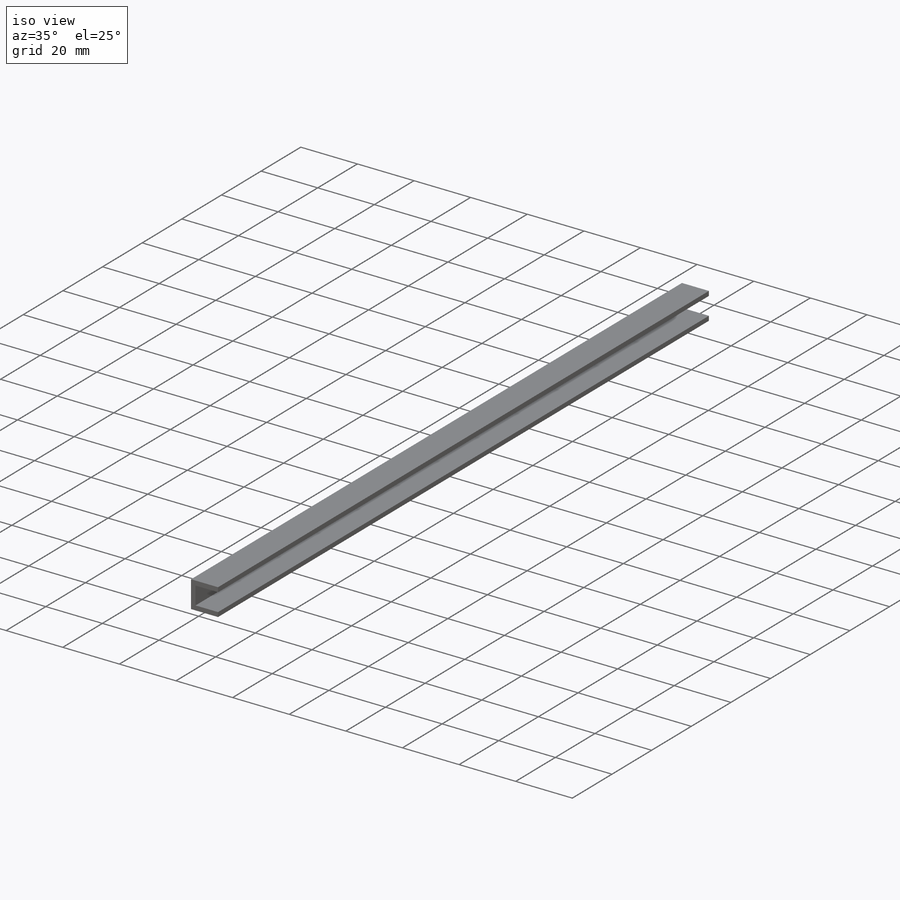
[diagram: iso view]
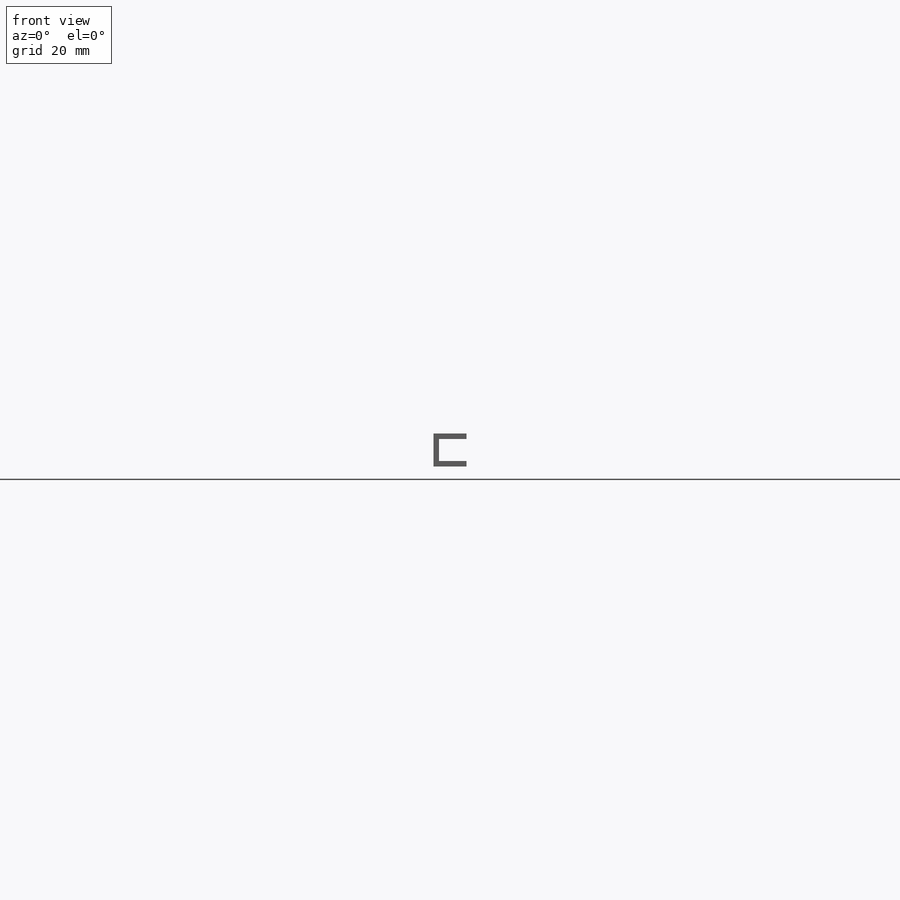
[diagram: front view]
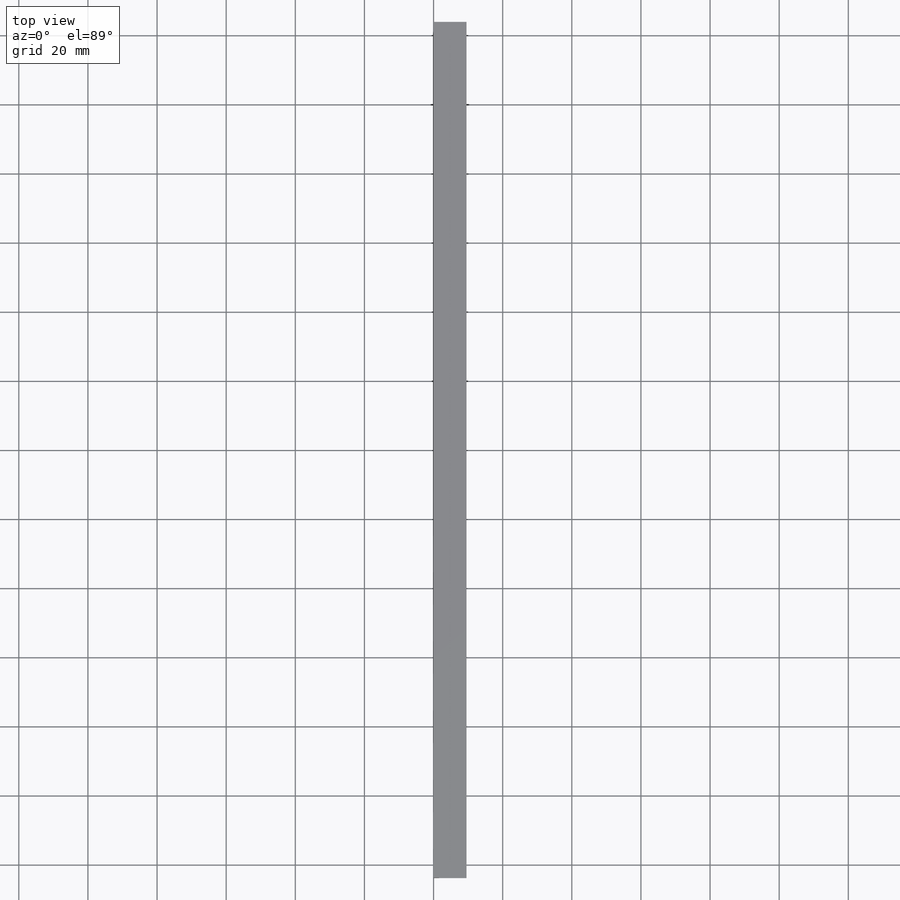
[diagram: top view]
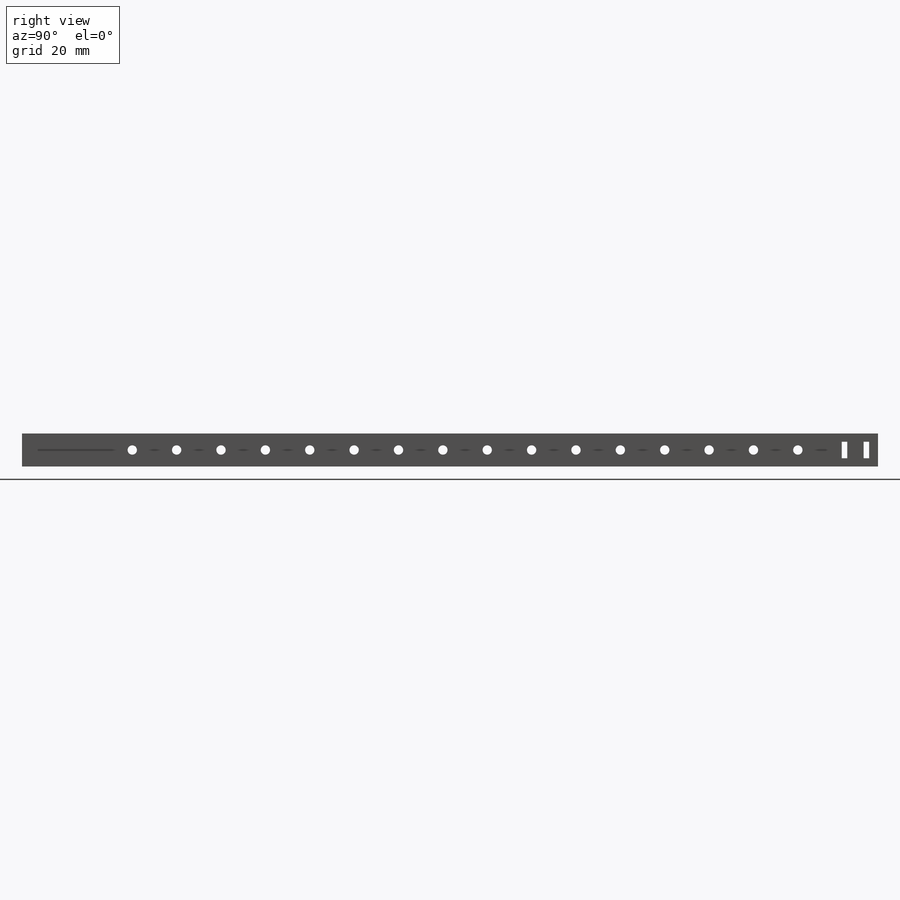
[diagram: right view]
SOLIDWORKS PART (.sldprt)
format: sldprt  version: not decoded by parser v0  size: 365,056 bytes
history: native  units: mm
features: thread x16, sketch x7, hole x2, cut_extrude x2, material x1, extrude x1 (+11 scaffold rows collapsed)
feature tree (40):
  scaffold x11  (default folders/planes/origin — collapsed)
  material  "6063-T6"
  sketch  "Sketch1"  dims[D1=9.525mm D2=9.525mm D3=1.5875mm D4=1.5875mm]
  extrude  "Boss-Extrude1"  Depth=247.65mm
  hole  "CSK for #6 Flat Head Machine Screw (100)1"  Diameter=3.7973mm Depth=1.5875mm
  sketch  "Sketch9"  dims[D1=152.4mm]
  sketch  "Sketch8"  dims[hole-wizard template sketch: 55 standard entries collapsed; hole parameters kept: c17.Thru Hole Depth=1.5875mm c17.Near C'Sink Dia.=7.0866mm c17.D4=~3.666174mm c17.Near C'Sink Angle=100.0deg]
  sketch  "Sketch10"  dims[D1=2.54mm D2=76.2mm]
  cut_extrude  "Cut-Extrude1"  [1 undecoded]
  sketch  "Sketch11"  dims[D1=2.54mm D2=~2.38125mm D3=~2.38125mm D4=1.5875mm D5=~2.38125mm]
  cut_extrude  "Cut-Extrude2"  [1 undecoded]
  hole  "#6-32 Tapped Hole1"  Diameter=2.7051mm Depth=9.398mm
  sketch  "Sketch14"  dims[D2=12.7mm D1=17.0]
  sketch  "Sketch13"  dims[hole-wizard template sketch: 49 standard entries collapsed; hole parameters kept: c15.Drill Angle=180.0deg]
  thread  "Hole Thread2"  Diameter=1.5875mm  [1 undecoded]
  thread  "Hole Thread3"  Diameter=1.5875mm  [1 undecoded]
  thread  "Hole Thread4"  Diameter=1.5875mm  [1 undecoded]
  thread  "Hole Thread5"  Diameter=1.5875mm  [1 undecoded]
  thread  "Hole Thread6"  Diameter=1.5875mm  [1 undecoded]
  thread  "Hole Thread7"  Diameter=1.5875mm  [1 undecoded]
  thread  "Hole Thread8"  Diameter=1.5875mm  [1 undecoded]
  thread  "Hole Thread9"  Diameter=1.5875mm  [1 undecoded]
  thread  "Hole Thread10"  Diameter=1.5875mm  [1 undecoded]
  thread  "Hole Thread11"  Diameter=1.5875mm  [1 undecoded]
  thread  "Hole Thread12"  Diameter=1.5875mm  [1 undecoded]
  thread  "Hole Thread13"  Diameter=1.5875mm  [1 undecoded]
  thread  "Hole Thread14"  Diameter=1.5875mm  [1 undecoded]
  thread  "Hole Thread15"  Diameter=1.5875mm  [1 undecoded]
  thread  "Hole Thread16"  Diameter=1.5875mm  [1 undecoded]
  thread  "Hole Thread17"  Diameter=1.5875mm  [1 undecoded]
decode coverage: 26 of 28 modeling features carry decoded parameters
note: ~ marks probable driven/reference dimensions
note: 18 parameter values undecoded
note: suppression state not decoded; provenance and decode notes live in map.json
